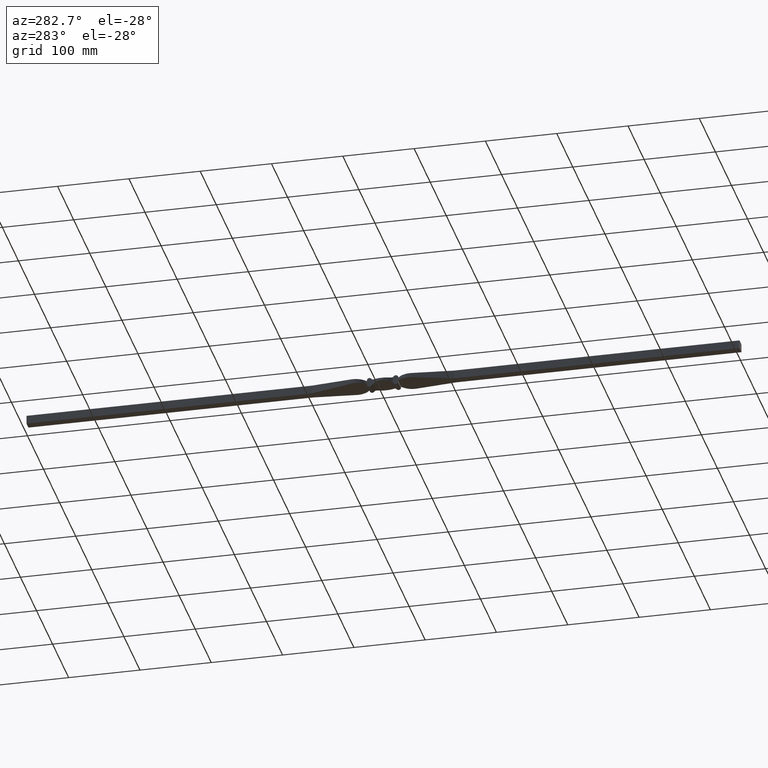
[diagram: clean part render]
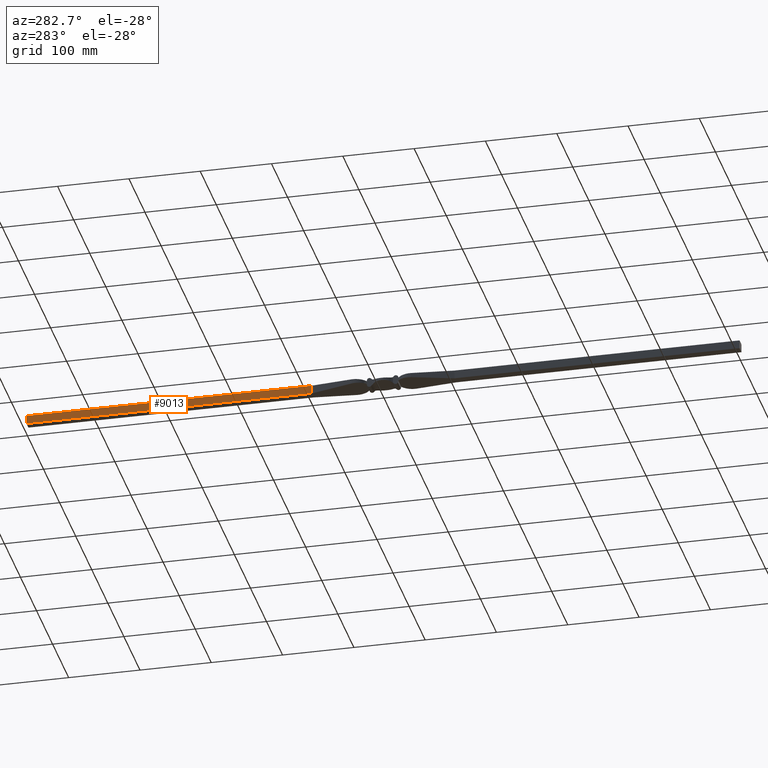
[diagram: same view with one face highlighted and labeled with its STEP entity id]
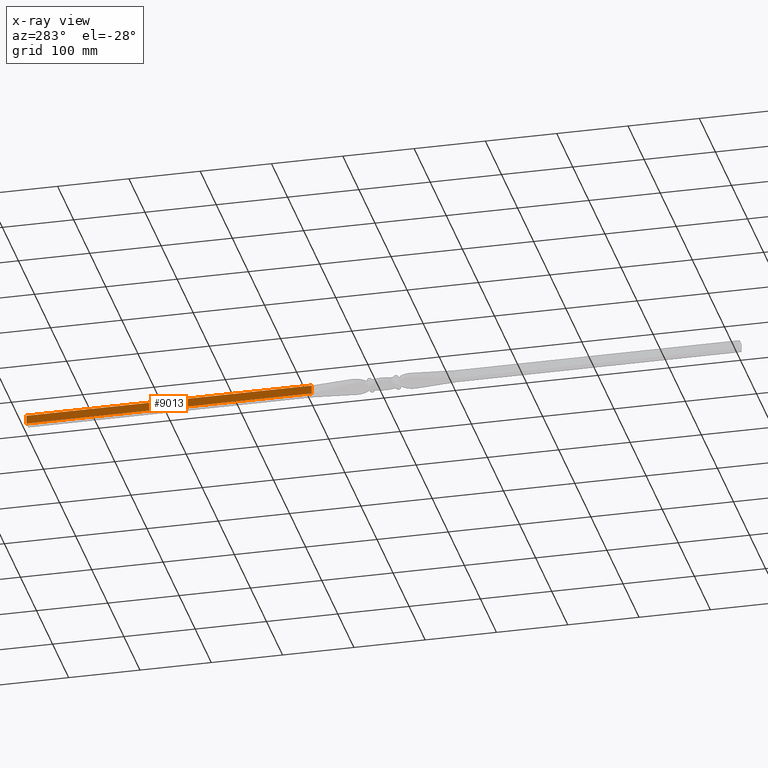
[diagram: x-ray of the same camera — body ghosted, the highlighted face saturated]
A machine part, auxiliary view. The second image highlights one B-rep face of the part: STEP entity #9013.
The next image is the same camera in x-ray: the body ghosted, the highlighted face saturated — about 0% of this face is hidden behind the body in this view.
In plain terms, the highlighted planar face has unit normal (1, 0, -0).
Its self-contained STEP definition (entity closure, byte-faithful):
#1397 = LINE ( 'NONE', #3209, #5742 ) ;
#1462 = DIRECTION ( 'NONE',  ( 1.000000000000000000, 0.000000000000000000, -1.445602896647339163E-16 ) ) ;
#1539 = CARTESIAN_POINT ( 'NONE',  ( -6.000000000000001776, 500.0000000000000000, -6.000000000000000000 ) ) ;
#1561 = VECTOR ( 'NONE', #8559, 1000.000000000000000 ) ;
#1617 = EDGE_CURVE ( 'NONE', #2692, #1900, #6618, .T. ) ;
#1900 = VERTEX_POINT ( 'NONE', #9336 ) ;
#2224 = VECTOR ( 'NONE', #7597, 1000.000000000000000 ) ;
#2376 = PLANE ( 'NONE',  #7131 ) ;
#2692 = VERTEX_POINT ( 'NONE', #1539 ) ;
#2991 = CARTESIAN_POINT ( 'NONE',  ( -6.000000000000001776, 100.0000000000000000, -6.000000000000000000 ) ) ;
#3083 = LINE ( 'NONE', #10282, #1561 ) ;
#3088 = CARTESIAN_POINT ( 'NONE',  ( -6.000000000000000000, 100.0000000000000000, 6.000000000000000000 ) ) ;
#3149 = EDGE_CURVE ( 'NONE', #1900, #11219, #3083, .T. ) ;
#3209 = CARTESIAN_POINT ( 'NONE',  ( -6.000000000000001776, 100.0000000000000000, -6.000000000000000000 ) ) ;
#3295 = DIRECTION ( 'NONE',  ( -1.445602896647339163E-16, 0.000000000000000000, -1.000000000000000000 ) ) ;
#4075 = CARTESIAN_POINT ( 'NONE',  ( -6.000000000000001776, 1016.970562748477278, -6.000000000000000000 ) ) ;
#4149 = ORIENTED_EDGE ( 'NONE', *, *, #7755, .T. ) ;
#4230 = CARTESIAN_POINT ( 'NONE',  ( -6.000000000000001776, 1016.970562748477278, -6.000000000000000000 ) ) ;
#4722 = FACE_OUTER_BOUND ( 'NONE', #5040, .T. ) ;
#5040 = EDGE_LOOP ( 'NONE', ( #8680, #10555, #4149, #9688 ) ) ;
#5742 = VECTOR ( 'NONE', #9546, 1000.000000000000000 ) ;
#6618 = LINE ( 'NONE', #8073, #9601 ) ;
#7014 = LINE ( 'NONE', #4075, #2224 ) ;
#7131 = AXIS2_PLACEMENT_3D ( 'NONE', #4230, #1462, #3295 ) ;
#7182 = DIRECTION ( 'NONE',  ( 1.445602896647339163E-16, -0.000000000000000000, 1.000000000000000000 ) ) ;
#7211 = EDGE_CURVE ( 'NONE', #2692, #7869, #7014, .T. ) ;
#7597 = DIRECTION ( 'NONE',  ( -0.000000000000000000, -1.000000000000000000, -0.000000000000000000 ) ) ;
#7755 = EDGE_CURVE ( 'NONE', #7869, #11219, #1397, .T. ) ;
#7869 = VERTEX_POINT ( 'NONE', #2991 ) ;
#8073 = CARTESIAN_POINT ( 'NONE',  ( -6.000000000000001776, 500.0000000000000000, -6.000000000000000000 ) ) ;
#8559 = DIRECTION ( 'NONE',  ( -0.000000000000000000, -1.000000000000000000, -0.000000000000000000 ) ) ;
#8680 = ORIENTED_EDGE ( 'NONE', *, *, #1617, .F. ) ;
#9013 = ADVANCED_FACE ( 'NONE', ( #4722 ), #2376, .F. ) ;
#9336 = CARTESIAN_POINT ( 'NONE',  ( -6.000000000000000000, 500.0000000000000000, 6.000000000000000000 ) ) ;
#9546 = DIRECTION ( 'NONE',  ( 1.445602896647339163E-16, 0.000000000000000000, 1.000000000000000000 ) ) ;
#9601 = VECTOR ( 'NONE', #7182, 1000.000000000000000 ) ;
#9688 = ORIENTED_EDGE ( 'NONE', *, *, #3149, .F. ) ;
#10282 = CARTESIAN_POINT ( 'NONE',  ( -6.000000000000000000, 1016.970562748477278, 6.000000000000000000 ) ) ;
#10555 = ORIENTED_EDGE ( 'NONE', *, *, #7211, .T. ) ;
#11219 = VERTEX_POINT ( 'NONE', #3088 ) ;